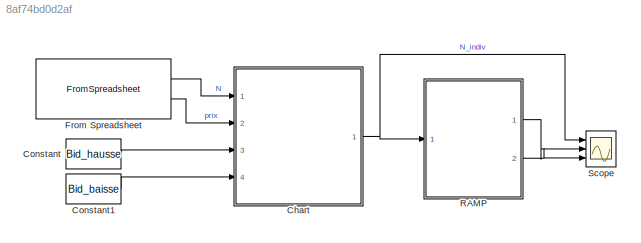
MODEL slx_8af74bd0d2af
KIND model
CONFIG AbsTol = auto
CONFIG EnableMultiTasking = off
CONFIG FixedStep = SimulationStep
CONFIG MaxStep = auto
CONFIG MinStep = auto
CONFIG RelTol = 1e-3
CONFIG SampleTimeConstraint = Unconstrained
CONFIG SolverName = FixedStepDiscrete
CONFIG StartTime = 0.0
CONFIG StopTime = 86000
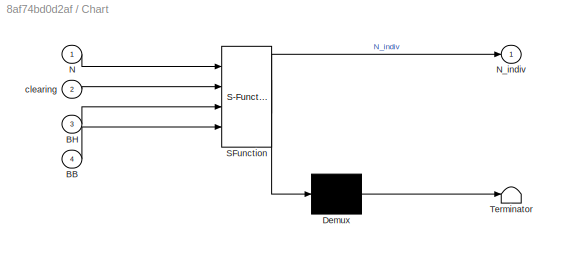
BLOCK [SubSystem] Chart
  ErrorFcn = Stateflow.Translate.translate
  PermitHierarchicalResolution = ExplicitOnly
  Ports = [4, 1]
  RequestExecContextInheritance = off
  SFBlockType = Chart
  TreatAsAtomicUnit = on
BLOCK [Demux] Chart/ Demux 
  Outputs = 1
  Ports = [1, 1]
BLOCK [S-Function] Chart/ SFunction 
  EnableBusSupport = on
  FunctionName = sf_sfun
  PortCounts = [4 2]
  Ports = [4, 2]
  SFcnIsStateOwnerBlock = off
  SFunctionDeploymentMode = off
  Tag = Stateflow S-Function 3
BLOCK [Terminator] Chart/ Terminator 
BLOCK [Inport] Chart/BB
  Port = 4
BLOCK [Inport] Chart/BH
  Port = 3
BLOCK [Inport] Chart/N
BLOCK [Outport] Chart/N_indiv
BLOCK [Inport] Chart/clearing
  Port = 2
BLOCK [Constant] Constant
  Value = Bid_hausse
BLOCK [Constant] Constant1
  Value = Bid_baisse
BLOCK [FromSpreadsheet] From Spreadsheet
  FileName = signal_N.xlsx
  Ports = [0, 2]
  SheetName = Feuil1
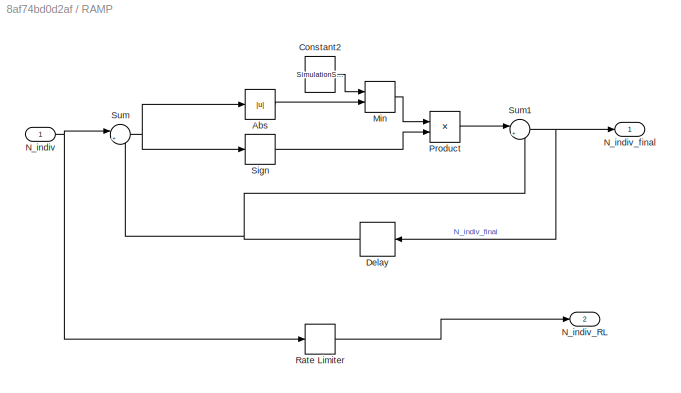
BLOCK [SubSystem] RAMP
  Ports = [1, 2]
  RequestExecContextInheritance = off
BLOCK [Abs] RAMP/Abs
  SaturateOnIntegerOverflow = off
BLOCK [Constant] RAMP/Constant2
  Value = SimulationStep/300
BLOCK [Delay] RAMP/Delay
  DelayLength = 1
  InputPortMap = u0
  Ports = [1, 1]
BLOCK [MinMax] RAMP/Min
  Inputs = 2
  Ports = [2, 1]
BLOCK [Inport] RAMP/N_indiv
BLOCK [Outport] RAMP/N_indiv_RL
  Port = 2
BLOCK [Outport] RAMP/N_indiv_final
BLOCK [Product] RAMP/Product
  Ports = [2, 1]
BLOCK [RateLimiter] RAMP/Rate Limiter
  FallingSlewLimit = -1/300
  LinearizeAsGain = off
  RisingSlewLimit = 1/300
  SampleTimeMode = inherited
BLOCK [Signum] RAMP/Sign
BLOCK [Sum] RAMP/Sum
  Inputs = |+-
  Ports = [2, 1]
BLOCK [Sum] RAMP/Sum1
  Inputs = |++
  Ports = [2, 1]
BLOCK [Scope] Scope
  Floating = off
  NumInputPorts = 3
  Ports = [3]
  ScopeSpecificationString = Simulink.scopes.TimeScopeBlockCfg('CurrentConfiguration', extmgr.ConfigurationSet(extmgr.Configuration('Core','General UI',true),extmgr.Configuration('Core','Source UI',true),extmgr.Configuration('Sources','WiredSimulink',true),extmgr.Configuration('Visuals','Time Domain',true,'SerializedDisplays',{struct('MinYLimReal','-1.25','MaxYLimReal','1.25','YLabelReal','','MinYLimMag','0.00000','MaxYLimMag...<+1479ch>
NET Chart:1 -> RAMP:1, Scope:1
LINE Constant1:1 -> Chart:4
LINE Constant:1 -> Chart:3
LINE From Spreadsheet:1 -> Chart:1
LINE From Spreadsheet:2 -> Chart:2
LINE RAMP/Abs:1 -> RAMP/Min:2
LINE RAMP/Constant2:1 -> RAMP/Min:1
NET RAMP/Delay:1 -> RAMP/Sum1:2, RAMP/Sum:2
LINE RAMP/Min:1 -> RAMP/Product:1
NET RAMP/N_indiv:1 -> RAMP/Rate Limiter:1, RAMP/Sum:1
LINE RAMP/Product:1 -> RAMP/Sum1:1
LINE RAMP/Rate Limiter:1 -> RAMP/N_indiv_RL:1
LINE RAMP/Sign:1 -> RAMP/Product:2
NET RAMP/Sum1:1 -> RAMP/Delay:1, RAMP/N_indiv_final:1
NET RAMP/Sum:1 -> RAMP/Abs:1, RAMP/Sign:1
LINE RAMP:1 -> Scope:2
LINE RAMP:2 -> Scope:3
note: NET lines group one-source signal fan-out (src -> all destinations, sorted); 1:1 wires keep LINE
CHART Chart states=3 transitions=5
  STATE_LABEL 'Baisse\nen : clearing <= BB;\n N_indiv = -1;'
  STATE_LABEL 'N_0\nen : N_indiv = 0;\n'
  STATE_LABEL 'Hausse\nen :  clearing >= BH;\n  N_indiv = 1;\n'
CHART  states=0 transitions=0
